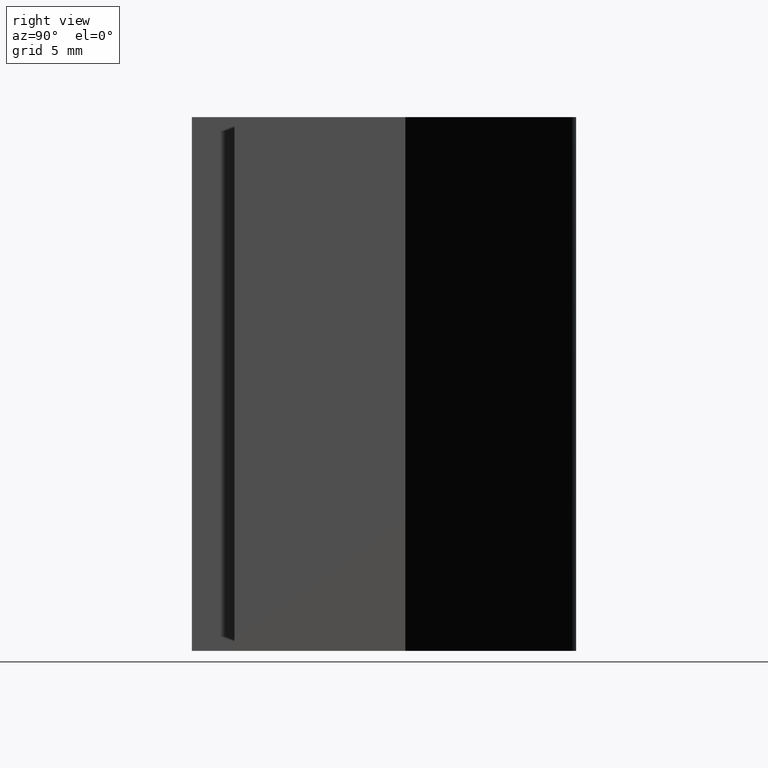
[diagram: clean part render]
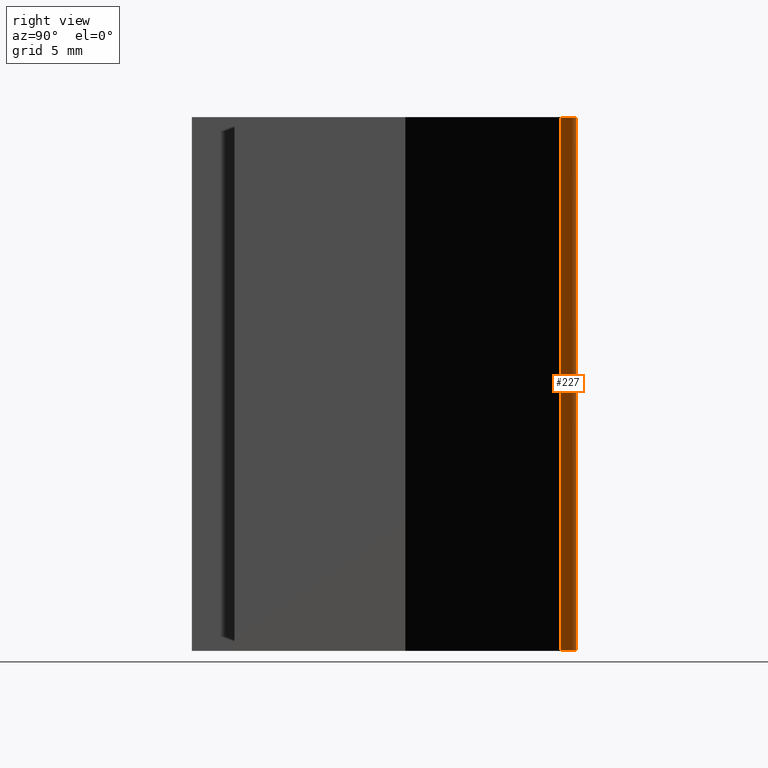
[diagram: same view with one face highlighted and labeled with its STEP entity id]
A machine part, right view. The second image highlights one B-rep face of the part: STEP entity #227.
In plain terms, the highlighted cylindrical surface (partial cylindrical patch) has radius 2 mm, axis along (0, 0, 1).
Its self-contained STEP definition (entity closure, byte-faithful):
#14=CYLINDRICAL_SURFACE('',#263,2.);
#24=FACE_OUTER_BOUND('',#36,.T.);
#36=EDGE_LOOP('',(#183,#184,#185,#186));
#41=CIRCLE('',#256,2.);
#42=CIRCLE('',#264,2.);
#64=LINE('',#374,#92);
#65=LINE('',#378,#93);
#92=VECTOR('',#308,10.);
#93=VECTOR('',#313,10.);
#107=VERTEX_POINT('',#344);
#108=VERTEX_POINT('',#346);
#115=VERTEX_POINT('',#372);
#116=VERTEX_POINT('',#376);
#127=EDGE_CURVE('',#108,#107,#41,.T.);
#141=EDGE_CURVE('',#115,#107,#64,.T.);
#142=EDGE_CURVE('',#115,#116,#42,.T.);
#143=EDGE_CURVE('',#116,#108,#65,.T.);
#183=ORIENTED_EDGE('',*,*,#142,.T.);
#184=ORIENTED_EDGE('',*,*,#143,.T.);
#185=ORIENTED_EDGE('',*,*,#127,.T.);
#186=ORIENTED_EDGE('',*,*,#141,.F.);
#227=ADVANCED_FACE('',(#24),#14,.T.);
#256=AXIS2_PLACEMENT_3D('',#347,#281,#282);
#263=AXIS2_PLACEMENT_3D('',#375,#309,#310);
#264=AXIS2_PLACEMENT_3D('',#377,#311,#312);
#281=DIRECTION('center_axis',(0.,0.,1.));
#282=DIRECTION('ref_axis',(-0.773603064327022,-0.633670497075445,0.));
#308=DIRECTION('',(0.,0.,-1.));
#309=DIRECTION('center_axis',(0.,0.,1.));
#310=DIRECTION('ref_axis',(-0.773603064327022,-0.633670497075445,0.));
#311=DIRECTION('center_axis',(0.,0.,-1.));
#312=DIRECTION('ref_axis',(-0.773603064327022,-0.633670497075445,0.));
#313=DIRECTION('',(0.,0.,-1.));
#344=CARTESIAN_POINT('',(-1.54720612865404,15.2673409941509,-12.5));
#346=CARTESIAN_POINT('',(1.54720612865404,15.2673409941509,-12.5));
#347=CARTESIAN_POINT('Origin',(0.,14.,-12.5));
#372=CARTESIAN_POINT('',(-1.54720612865404,15.2673409941509,12.5));
#374=CARTESIAN_POINT('',(-1.54720612865404,15.2673409941509,0.));
#375=CARTESIAN_POINT('Origin',(0.,14.,0.));
#376=CARTESIAN_POINT('',(1.54720612865404,15.2673409941509,12.5));
#377=CARTESIAN_POINT('Origin',(0.,14.,12.5));
#378=CARTESIAN_POINT('',(1.54720612865404,15.2673409941509,0.));